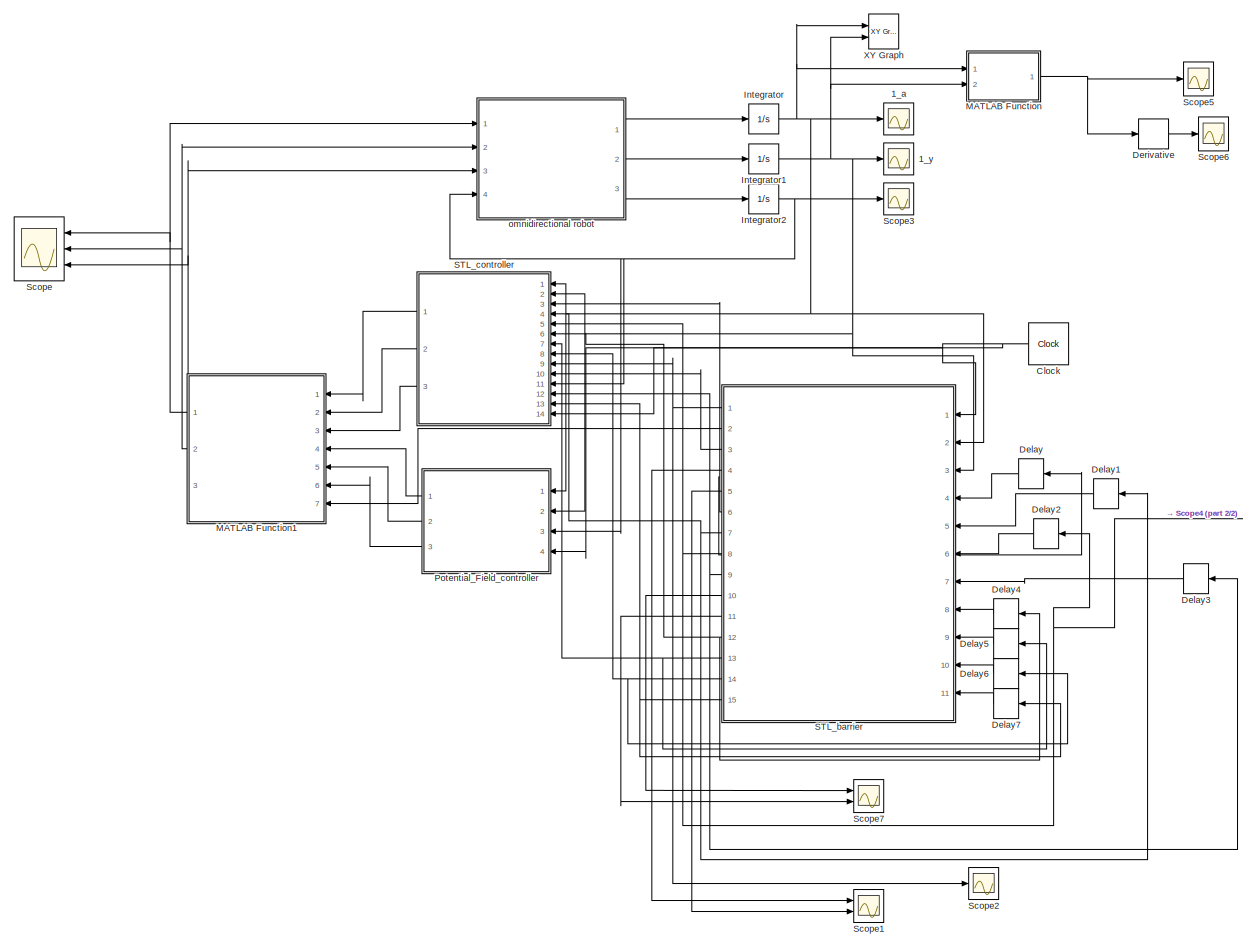
[diagram: root canvas - part 1/2, most of the canvas]
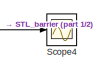
[diagram: root canvas - part 2/2, middle right region]
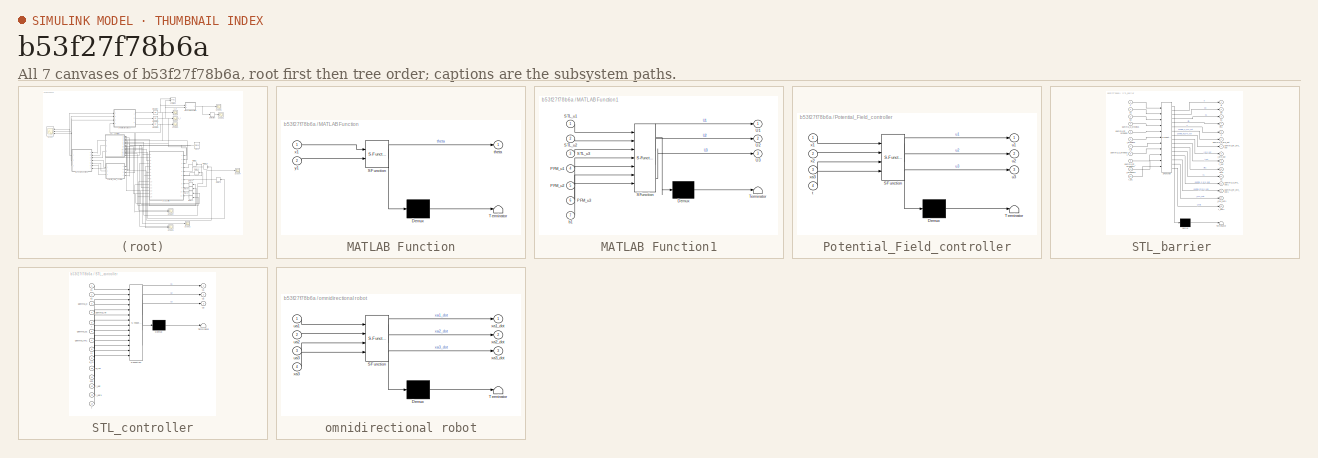
[diagram: thumbnail index - all 7 canvases of the model, root first then tree order]
MODEL slx_b53f27f78b6a
KIND model
CONFIG AbsTol = auto
CONFIG EnableMultiTasking = off
CONFIG FixedStep = 1e-2
CONFIG MaxStep = auto
CONFIG MinStep = auto
CONFIG RelTol = 1e-3
CONFIG SampleTimeConstraint = Unconstrained
CONFIG SolverName = FixedStepAuto
CONFIG StartTime = 0.0
CONFIG StopTime = 60.0
BLOCK [Scope] 1_a
  Floating = off
  NumInputPorts = 1
  Ports = [1]
  ScopeSpecificationString = Simulink.scopes.TimeScopeBlockCfg('CurrentConfiguration', extmgr.ConfigurationSet(extmgr.Configuration('Core','General UI',true),extmgr.Configuration('Core','Source UI',true),extmgr.Configuration('Sources','WiredSimulink',true,'DataLogging',true,'DataLoggingVariableName','x1','DataLoggingSaveFormat','StructureWithTime'),extmgr.Configuration('Visuals','Time Domain',true,'SerializedDisplays',{struct...<+1459ch>
BLOCK [Scope] 1_y
  Floating = off
  NumInputPorts = 1
  Ports = [1]
  ScopeSpecificationString = Simulink.scopes.TimeScopeBlockCfg('CurrentConfiguration', extmgr.ConfigurationSet(extmgr.Configuration('Core','General UI',true),extmgr.Configuration('Core','Source UI',true),extmgr.Configuration('Sources','WiredSimulink',true,'DataLoggingVariableName','x2','DataLogging',true,'DataLoggingSaveFormat','StructureWithTime'),extmgr.Configuration('Visuals','Time Domain',true,'SerializedDisplays',{struct...<+1464ch>
BLOCK [Clock] Clock
  DisplayTime = on
BLOCK [Delay] Delay
  DelayLength = 1
  InitialCondition = 0
  InputPortMap = u0
  Ports = [1, 1]
BLOCK [Delay] Delay1
  DelayLength = 1
  InitialCondition = 0
  InputPortMap = u0
  Ports = [1, 1]
BLOCK [Delay] Delay2
  DelayLength = 1
  InitialCondition = 0
  InputPortMap = u0
  Ports = [1, 1]
BLOCK [Delay] Delay3
  DelayLength = 1
  InitialCondition = 0
  InputPortMap = u0
  Ports = [1, 1]
BLOCK [Delay] Delay4
  DelayLength = 1
  InitialCondition = 0
  InputPortMap = u0
  Ports = [1, 1]
BLOCK [Delay] Delay5
  DelayLength = 1
  InitialCondition = 0
  InputPortMap = u0
  Ports = [1, 1]
BLOCK [Delay] Delay6
  DelayLength = 1
  InitialCondition = 0
  InputPortMap = u0
  Ports = [1, 1]
BLOCK [Delay] Delay7
  DelayLength = 1
  InitialCondition = 0
  InputPortMap = u0
  Ports = [1, 1]
BLOCK [Derivative] Derivative
BLOCK [Integrator] Integrator
  Ports = [1, 1]
BLOCK [Integrator] Integrator1
  Ports = [1, 1]
BLOCK [Integrator] Integrator2
  Ports = [1, 1]
BLOCK [SubSystem] MATLAB Function
  ErrorFcn = Stateflow.Translate.translate
  PermitHierarchicalResolution = ExplicitOnly
  Ports = [2, 1]
  RequestExecContextInheritance = off
  SFBlockType = MATLAB Function
  TreatAsAtomicUnit = on
BLOCK [Demux] MATLAB Function/ Demux 
  Outputs = 1
  Ports = [1, 1]
BLOCK [S-Function] MATLAB Function/ SFunction 
  EnableBusSupport = on
  FunctionName = sf_sfun
  PortCounts = [2 2]
  Ports = [2, 2]
  SFcnIsStateOwnerBlock = off
  SFunctionDeploymentMode = off
  Tag = Stateflow S-Function 4
BLOCK [Terminator] MATLAB Function/ Terminator 
BLOCK [Outport] MATLAB Function/theta
  VectorParamsAs1DForOutWhenUnconnected = off
BLOCK [Inport] MATLAB Function/x1
BLOCK [Inport] MATLAB Function/y1
  Port = 2
BLOCK [SubSystem] MATLAB Function1
  ErrorFcn = Stateflow.Translate.translate
  PermitHierarchicalResolution = ExplicitOnly
  Ports = [7, 3]
  RequestExecContextInheritance = off
  SFBlockType = MATLAB Function
  TreatAsAtomicUnit = on
BLOCK [Demux] MATLAB Function1/ Demux 
  Outputs = 1
  Ports = [1, 1]
BLOCK [S-Function] MATLAB Function1/ SFunction 
  EnableBusSupport = on
  FunctionName = sf_sfun
  PortCounts = [7 4]
  Ports = [7, 4]
  SFcnIsStateOwnerBlock = off
  SFunctionDeploymentMode = off
  Tag = Stateflow S-Function 6
BLOCK [Terminator] MATLAB Function1/ Terminator 
BLOCK [Inport] MATLAB Function1/PFM_u1
  Port = 4
BLOCK [Inport] MATLAB Function1/PFM_u2
  Port = 5
BLOCK [Inport] MATLAB Function1/PFM_u3
  Port = 6
BLOCK [Inport] MATLAB Function1/STL_u1
BLOCK [Inport] MATLAB Function1/STL_u2
  Port = 2
BLOCK [Inport] MATLAB Function1/STL_u3
  Port = 3
BLOCK [Outport] MATLAB Function1/U1
BLOCK [Outport] MATLAB Function1/U2
  Port = 2
BLOCK [Outport] MATLAB Function1/U3
  Port = 3
BLOCK [Inport] MATLAB Function1/b1
  Port = 7
BLOCK [SubSystem] Potential_Field_controller
  ErrorFcn = Stateflow.Translate.translate
  PermitHierarchicalResolution = ExplicitOnly
  Ports = [4, 3]
  RequestExecContextInheritance = off
  SFBlockType = MATLAB Function
  TreatAsAtomicUnit = on
BLOCK [Demux] Potential_Field_controller/ Demux 
  Outputs = 1
  Ports = [1, 1]
BLOCK [S-Function] Potential_Field_controller/ SFunction 
  EnableBusSupport = on
  FunctionName = sf_sfun
  PortCounts = [4 4]
  Ports = [4, 4]
  SFcnIsStateOwnerBlock = off
  SFunctionDeploymentMode = off
  Tag = Stateflow S-Function 5
BLOCK [Terminator] Potential_Field_controller/ Terminator 
BLOCK [Inport] Potential_Field_controller/t
  Port = 4
BLOCK [Outport] Potential_Field_controller/u1
BLOCK [Outport] Potential_Field_controller/u2
  Port = 2
BLOCK [Outport] Potential_Field_controller/u3
  Port = 3
BLOCK [Inport] Potential_Field_controller/x1
BLOCK [Inport] Potential_Field_controller/x2
  Port = 2
BLOCK [Inport] Potential_Field_controller/xa3
  Port = 3
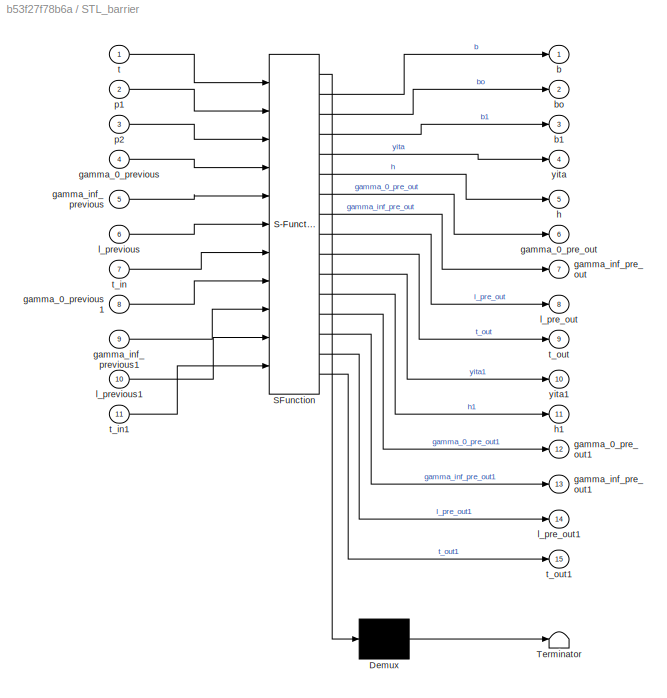
BLOCK [SubSystem] STL_barrier 
  ErrorFcn = Stateflow.Translate.translate
  PermitHierarchicalResolution = ExplicitOnly
  Ports = [11, 15]
  RequestExecContextInheritance = off
  SFBlockType = MATLAB Function
  TreatAsAtomicUnit = on
BLOCK [Demux] STL_barrier / Demux 
  Outputs = 1
  Ports = [1, 1]
BLOCK [S-Function] STL_barrier / SFunction 
  EnableBusSupport = on
  FunctionName = sf_sfun
  PortCounts = [11 16]
  Ports = [11, 16]
  SFcnIsStateOwnerBlock = off
  SFunctionDeploymentMode = off
  Tag = Stateflow S-Function 1
BLOCK [Terminator] STL_barrier / Terminator 
BLOCK [Outport] STL_barrier /b
BLOCK [Outport] STL_barrier /b1
  Port = 3
BLOCK [Outport] STL_barrier /bo
  Port = 2
BLOCK [Outport] STL_barrier /gamma_0_pre_out
  Port = 6
BLOCK [Outport] STL_barrier /gamma_0_pre_out1
  Port = 12
BLOCK [Inport] STL_barrier /gamma_0_previous
  Port = 4
BLOCK [Inport] STL_barrier /gamma_0_previous1
  Port = 8
BLOCK [Outport] STL_barrier /gamma_inf_pre_out
  Port = 7
BLOCK [Outport] STL_barrier /gamma_inf_pre_out1
  Port = 13
BLOCK [Inport] STL_barrier /gamma_inf_previous
  Port = 5
BLOCK [Inport] STL_barrier /gamma_inf_previous1
  Port = 9
BLOCK [Outport] STL_barrier /h
  Port = 5
  VectorParamsAs1DForOutWhenUnconnected = off
BLOCK [Outport] STL_barrier /h1
  Port = 11
BLOCK [Outport] STL_barrier /l_pre_out
  Port = 8
BLOCK [Outport] STL_barrier /l_pre_out1
  Port = 14
BLOCK [Inport] STL_barrier /l_previous
  Port = 6
BLOCK [Inport] STL_barrier /l_previous1
  Port = 10
BLOCK [Inport] STL_barrier /p1
  Port = 2
BLOCK [Inport] STL_barrier /p2
  Port = 3
BLOCK [Inport] STL_barrier /t
BLOCK [Inport] STL_barrier /t_in
  Port = 7
BLOCK [Inport] STL_barrier /t_in1
  Port = 11
BLOCK [Outport] STL_barrier /t_out
  Port = 9
BLOCK [Outport] STL_barrier /t_out1
  Port = 15
BLOCK [Outport] STL_barrier /yita
  Port = 4
  VectorParamsAs1DForOutWhenUnconnected = off
BLOCK [Outport] STL_barrier /yita1
  Port = 10
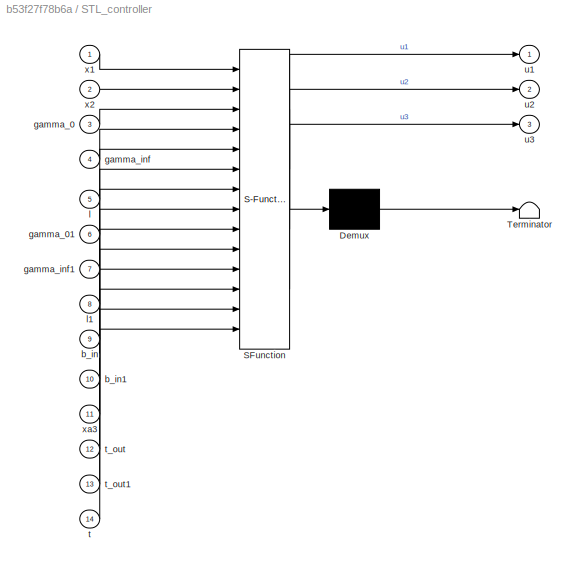
BLOCK [SubSystem] STL_controller
  ErrorFcn = Stateflow.Translate.translate
  PermitHierarchicalResolution = ExplicitOnly
  Ports = [14, 3]
  RequestExecContextInheritance = off
  SFBlockType = MATLAB Function
  TreatAsAtomicUnit = on
BLOCK [Demux] STL_controller/ Demux 
  Outputs = 1
  Ports = [1, 1]
BLOCK [S-Function] STL_controller/ SFunction 
  EnableBusSupport = on
  FunctionName = sf_sfun
  PortCounts = [14 4]
  Ports = [14, 4]
  SFcnIsStateOwnerBlock = off
  SFunctionDeploymentMode = off
  Tag = Stateflow S-Function 3
BLOCK [Terminator] STL_controller/ Terminator 
BLOCK [Inport] STL_controller/b_in
  Port = 9
BLOCK [Inport] STL_controller/b_in1
  Port = 10
BLOCK [Inport] STL_controller/gamma_0
  Port = 3
BLOCK [Inport] STL_controller/gamma_01
  Port = 6
BLOCK [Inport] STL_controller/gamma_inf
  Port = 4
BLOCK [Inport] STL_controller/gamma_inf1
  Port = 7
BLOCK [Inport] STL_controller/l
  Port = 5
BLOCK [Inport] STL_controller/l1
  Port = 8
BLOCK [Inport] STL_controller/t
  Port = 14
BLOCK [Inport] STL_controller/t_out
  Port = 12
BLOCK [Inport] STL_controller/t_out1
  Port = 13
BLOCK [Outport] STL_controller/u1
BLOCK [Outport] STL_controller/u2
  Port = 2
BLOCK [Outport] STL_controller/u3
  Port = 3
BLOCK [Inport] STL_controller/x1
BLOCK [Inport] STL_controller/x2
  Port = 2
BLOCK [Inport] STL_controller/xa3
  Port = 11
BLOCK [Scope] Scope
  Floating = off
  NumInputPorts = 3
  Ports = [3]
  ScopeSpecificationString = Simulink.scopes.TimeScopeBlockCfg('CurrentConfiguration', extmgr.ConfigurationSet(extmgr.Configuration('Core','General UI',true),extmgr.Configuration('Core','Source UI',true),extmgr.Configuration('Sources','WiredSimulink',true,'DataLoggingVariableName','U_3','DataLogging',true,'DataLoggingSaveFormat','StructureWithTime'),extmgr.Configuration('Visuals','Time Domain',true,'SerializedDisplays',{struc...<+1598ch>
BLOCK [Scope] Scope1
  Floating = off
  NumInputPorts = 2
  Ports = [2]
  ScopeSpecificationString = Simulink.scopes.TimeScopeBlockCfg('CurrentConfiguration', extmgr.ConfigurationSet(extmgr.Configuration('Core','General UI',true),extmgr.Configuration('Core','Source UI',true),extmgr.Configuration('Sources','WiredSimulink',true,'DataLoggingVariableName','h_and_yita','DataLogging',true,'DataLoggingSaveFormat','StructureWithTime'),extmgr.Configuration('Visuals','Time Domain',true,'SerializedDisplays'...<+1943ch>
BLOCK [Scope] Scope2
  Floating = off
  NumInputPorts = 1
  Ports = [1]
  ScopeSpecificationString = Simulink.scopes.TimeScopeBlockCfg('CurrentConfiguration', extmgr.ConfigurationSet(extmgr.Configuration('Core','General UI',true),extmgr.Configuration('Core','Source UI',true),extmgr.Configuration('Sources','WiredSimulink',true,'DataLoggingVariableName','ScopeData4'),extmgr.Configuration('Visuals','Time Domain',true,'SerializedDisplays',{struct('MinYLimReal','-0.56473','MaxYLimReal','5.08749','YLab...<+1450ch>
BLOCK [Scope] Scope3
  Floating = off
  NumInputPorts = 1
  Ports = [1]
  ScopeSpecificationString = Simulink.scopes.TimeScopeBlockCfg('CurrentConfiguration', extmgr.ConfigurationSet(extmgr.Configuration('Core','General UI',true),extmgr.Configuration('Core','Source UI',true),extmgr.Configuration('Sources','WiredSimulink',true,'DataLoggingVariableName','ScopeData5'),extmgr.Configuration('Visuals','Time Domain',true,'SerializedDisplays',{struct('MinYLimReal','-0.05134','MaxYLimReal','0.15798','YLab...<+1447ch>
BLOCK [Scope] Scope4
  Floating = off
  NumInputPorts = 1
  Ports = [1]
  ScopeSpecificationString = Simulink.scopes.TimeScopeBlockCfg('CurrentConfiguration', extmgr.ConfigurationSet(extmgr.Configuration('Core','General UI',true),extmgr.Configuration('Core','Source UI',true),extmgr.Configuration('Sources','WiredSimulink',true,'DataLoggingVariableName','ScopeData1'),extmgr.Configuration('Visuals','Time Domain',true,'SerializedDisplays',{struct('MinYLimReal','0.16481','MaxYLimReal','0.26599','YLabe...<+1379ch>
BLOCK [Scope] Scope5
  Floating = off
  NumInputPorts = 1
  Ports = [1]
  ScopeSpecificationString = Simulink.scopes.TimeScopeBlockCfg('CurrentConfiguration', extmgr.ConfigurationSet(extmgr.Configuration('Core','General UI',true),extmgr.Configuration('Core','Source UI',true),extmgr.Configuration('Sources','WiredSimulink',true,'DataLoggingVariableName','ScopeData7'),extmgr.Configuration('Visuals','Time Domain',true,'SerializedDisplays',{struct('MinYLimReal','-1.76715','MaxYLimReal','0.19635','YLab...<+1439ch>
BLOCK [Scope] Scope6
  Floating = off
  NumInputPorts = 1
  Ports = [1]
  ScopeSpecificationString = Simulink.scopes.TimeScopeBlockCfg('CurrentConfiguration', extmgr.ConfigurationSet(extmgr.Configuration('Core','General UI',true),extmgr.Configuration('Core','Source UI',true),extmgr.Configuration('Sources','WiredSimulink',true),extmgr.Configuration('Visuals','Time Domain',true,'SerializedDisplays',{struct('MinYLimReal','-7436.0344','MaxYLimReal','66924.30119','YLabelReal','','MinYLimMag','  0.0000...<+1430ch>
BLOCK [Scope] Scope7
  Floating = off
  NumInputPorts = 2
  Ports = [2]
  ScopeSpecificationString = Simulink.scopes.TimeScopeBlockCfg('CurrentConfiguration', extmgr.ConfigurationSet(extmgr.Configuration('Core','General UI',true),extmgr.Configuration('Core','Source UI',true),extmgr.Configuration('Sources','WiredSimulink',true,'DataLoggingVariableName','h_gamma2','DataLogging',true,'DataLoggingSaveFormat','StructureWithTime'),extmgr.Configuration('Visuals','Time Domain',true,'SerializedDisplays',{...<+1944ch>
BLOCK [Reference] XY Graph  REF=simulink/Sinks/XY Graph
  Ports = [2]
  SourceBlock = simulink/Sinks/XY Graph
  SourceProductBaseCode = SL
  SourceType = XY scope.
BLOCK [SubSystem] omnidirectional robot
  ErrorFcn = Stateflow.Translate.translate
  PermitHierarchicalResolution = ExplicitOnly
  Ports = [4, 3]
  RequestExecContextInheritance = off
  SFBlockType = MATLAB Function
  TreatAsAtomicUnit = on
BLOCK [Demux] omnidirectional robot/ Demux 
  Outputs = 1
  Ports = [1, 1]
BLOCK [S-Function] omnidirectional robot/ SFunction 
  EnableBusSupport = on
  FunctionName = sf_sfun
  PortCounts = [4 4]
  Ports = [4, 4]
  SFcnIsStateOwnerBlock = off
  SFunctionDeploymentMode = off
  Tag = Stateflow S-Function 2
BLOCK [Terminator] omnidirectional robot/ Terminator 
BLOCK [Inport] omnidirectional robot/ua1
BLOCK [Inport] omnidirectional robot/ua2
  Port = 2
BLOCK [Inport] omnidirectional robot/ua3
  Port = 3
BLOCK [Outport] omnidirectional robot/xa1_dot
BLOCK [Outport] omnidirectional robot/xa2_dot
  Port = 2
BLOCK [Inport] omnidirectional robot/xa3
  Port = 4
BLOCK [Outport] omnidirectional robot/xa3_dot
  Port = 3
NET Clock:1 -> Potential_Field_controller:4, STL_barrier :1, STL_controller:14
LINE Delay1:1 -> STL_barrier :5
LINE Delay2:1 -> STL_barrier :6
LINE Delay3:1 -> STL_barrier :7
LINE Delay4:1 -> STL_barrier :8
LINE Delay5:1 -> STL_barrier :9
LINE Delay6:1 -> STL_barrier :10
LINE Delay7:1 -> STL_barrier :11
LINE Delay:1 -> STL_barrier :4
LINE Derivative:1 -> Scope6:1
NET Integrator1:1 -> 1_y:1, MATLAB Function:2, Potential_Field_controller:2, STL_barrier :3, STL_controller:2, XY Graph:2
NET Integrator2:1 -> Potential_Field_controller:3, STL_controller:11, Scope3:1, omnidirectional robot:4
NET Integrator:1 -> 1_a:1, MATLAB Function:1, Potential_Field_controller:1, STL_barrier :2, STL_controller:1, XY Graph:1
NET MATLAB Function1:1 -> Scope:1, omnidirectional robot:1
NET MATLAB Function1:2 -> Scope:2, omnidirectional robot:2
NET MATLAB Function1:3 -> Scope:3, omnidirectional robot:3
NET MATLAB Function:1 -> Derivative:1, Scope5:1
LINE Potential_Field_controller:1 -> MATLAB Function1:4
LINE Potential_Field_controller:2 -> MATLAB Function1:5
LINE Potential_Field_controller:3 -> MATLAB Function1:6
NET STL_barrier :1 -> STL_controller:9, Scope2:1
LINE STL_barrier :10 -> Scope7:1
LINE STL_barrier :11 -> Scope7:2
NET STL_barrier :12 -> Delay4:1, STL_controller:6
NET STL_barrier :13 -> Delay5:1, STL_controller:7
NET STL_barrier :14 -> Delay6:1, STL_controller:8
NET STL_barrier :15 -> Delay7:1, STL_controller:13
LINE STL_barrier :2 -> MATLAB Function1:7
LINE STL_barrier :3 -> STL_controller:10
LINE STL_barrier :4 -> Scope1:1
LINE STL_barrier :5 -> Scope1:2
NET STL_barrier :6 -> Delay:1, STL_controller:3
NET STL_barrier :7 -> Delay1:1, STL_controller:4
NET STL_barrier :8 -> Delay2:1, STL_controller:5, Scope4:1
NET STL_barrier :9 -> Delay3:1, STL_controller:12
LINE STL_controller:1 -> MATLAB Function1:1
LINE STL_controller:2 -> MATLAB Function1:2
LINE STL_controller:3 -> MATLAB Function1:3
LINE omnidirectional robot:1 -> Integrator:1
LINE omnidirectional robot:2 -> Integrator1:1
LINE omnidirectional robot:3 -> Integrator2:1
note: NET lines group one-source signal fan-out (src -> all destinations, sorted); 1:1 wires keep LINE
CHART Potential_Field_controller states=1 transitions=1
  STATE_LABEL 'eML_blk_kernel()'
  STATE_LABEL "SCRIPT:\nfunction [u1,u2,u3] = fcn(x1, x2, xa3,t)\ncoder.extrinsic('Calculate_gradient');\ncoder.extrinsic('PVF_optimizer');\ncoder.extrinsic('add_random');\ncoder.extrinsic('Calculate_gradient_static_d_1');\ncoder.extrinsic('Calculate_gradient_static_d_2');\nA1=[-1,0;0,-1];\nif t<20\n    F=[180,180];\nelseif t>=20 && t<40\n     F=[0,200];\nelse\n    F=[200,0];\nend\ndistance=sqrt((x1-90)^2+(x2-90)^2);\ngradient_...<+1135ch>"
CHART MATLAB Function1 states=1 transitions=1
  STATE_LABEL 'eML_blk_kernel()'
  STATE_LABEL 'SCRIPT:\nfunction [U1,U2,U3] = fcn(STL_u1,STL_u2,STL_u3,PFM_u1,PFM_u2,PFM_u3,b1)\nU_goal=[STL_u1;STL_u2;STL_u3];\nU_obs=[PFM_u1;PFM_u2;PFM_u3];\nk=0.15;\nlambda=1-exp(-k*max(b1,0));\nU=lambda*U_goal+(1-lambda)*U_obs;\nU1=0;U2=0;U3=0;\nU1=U(1,1);\nU2=U(2,1);\nU3=U(3,1);\n\n'
CHART STL_barrier  states=1 transitions=1
  STATE_LABEL 'eML_blk_kernel()'
  STATE_LABEL 'SCRIPT:\nfunction [b,bo,b1,yita,h,gamma_0_pre_out,gamma_inf_pre_out,l_pre_out, t_out,    yita1,h1,gamma_0_pre_out1,gamma_inf_pre_out1,l_pre_out1, t_out1] = fcn(t,p1,p2,gamma_0_previous,gamma_inf_previous,l_previous, t_in  ,gamma_0_previous1,gamma_inf_previous1,l_previous1, t_in1 )\n%% gamma_builder(x1_0, x2_0,x1_goal, x2_goal,R, t_star)\n% (x1_0, x2_0) initial condition;\n% (x1_goal, x2_goal) goal pos...<+3608ch>'
CHART omnidirectional robot states=1 transitions=1
  STATE_LABEL 'eML_blk_kernel()'
  STATE_LABEL "SCRIPT:\nfunction [xa1_dot,xa2_dot,xa3_dot]= fcn(ua1,ua2,ua3,xa3)\n\nLi=0.2;\nBi=[0,cos(pi/6),-cos(pi/6);\n    -1,sin(pi/6),sin(pi/6);\n    Li,Li,Li;];\n\nR1=[cos(xa3),-sin(xa3),0;\n    sin(xa3),cos(xa3),0;\n    0,0,1;];\nR=0.02;\n\nA=R1*inv(Bi')*R*[ua1;ua2;ua3];\nxa1_dot=A(1,1);\nxa2_dot=A(2,1);\nxa3_dot=A(3,1);\n"
CHART STL_controller states=1 transitions=1
  STATE_LABEL 'eML_blk_kernel()'
  STATE_LABEL "SCRIPT:\nfunction [u1,u2,u3]= fcn(x1, x2,gamma_0,gamma_inf,l,gamma_01,gamma_inf1,l1, b_in, b_in1, xa3,t_out,t_out1,t)\ncoder.extrinsic('quadoptimizer');\n%coder.extrinsic('save');\n%%\n\nd11=93;\nd22=0;  \nif t<20\n    d1=90; d2=90;\nelseif t>=20 && t<40\n   d1=0; d2=100; \nelse\n   d1=100; d2=0; \nend\n% x1_0 = 0; x2_0 = 0; x1_goal = d1; x2_goal = d2; R = 10; t_star =15;\n% [gamma_0,gamma_inf,l] = gamma_builder(...<+1338ch>"
CHART MATLAB Function states=1 transitions=1
  STATE_LABEL 'eML_blk_kernel()'
  STATE_LABEL 'SCRIPT:\nfunction theta = fcn(x1, y1)\ntheta=atan2(y1,x1);\n\n'
CHART  states=0 transitions=0
CHART  states=0 transitions=0
CHART  states=0 transitions=0
CHART  states=0 transitions=0
CHART  states=0 transitions=0
CHART  states=0 transitions=0
